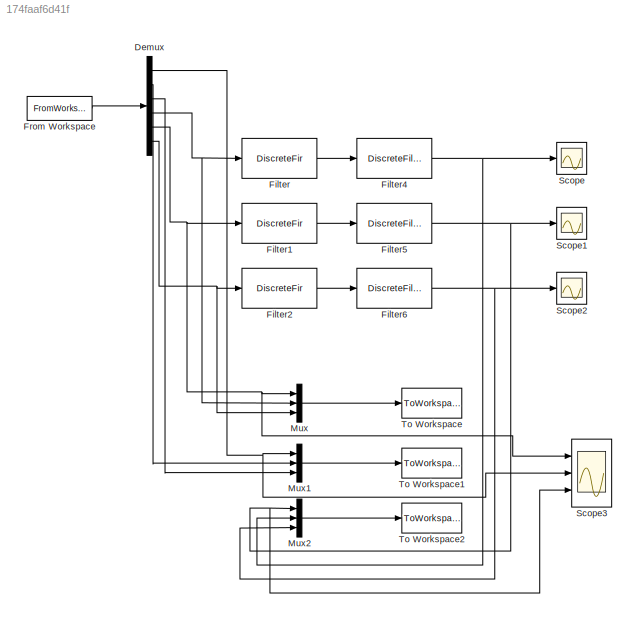
MODEL slx_174faaf6d41f
KIND model
CONFIG AbsTol = auto
CONFIG EnableMultiTasking = off
CONFIG FixedStep = auto
CONFIG MaxStep = auto
CONFIG MinStep = auto
CONFIG RelTol = 1e-3
CONFIG SampleTimeConstraint = Unconstrained
CONFIG Solver = VariableStepAuto
CONFIG SolverName = VariableStepAuto
CONFIG StartTime = 0.0
CONFIG StopTime = 19
BLOCK [Demux] Demux
  DisplayOption = bar
  Outputs = 6
  Ports = [1, 6]
BLOCK [DiscreteFir] Filter
  Coefficients = [6.3171406458817249e-18 0.038757485800321609 0.085067928451757008 0.12917070559097471 0.16083305039150533 0.17234165953088285 0.16083305039150533 0.12917070559097471 0.085067928451757008 0.038757485800321609 6.3171406458817249e-18]  <repeated x3 — deduplicated; at blocks: Filter, Filter1, Filter2>
  InputPortMap = u0
  InputProcessing = Columns as channels (frame based)
  OutputPortMap = o0
  Ports = [1, 1]
  Tag = BlockMethodSubSystem
BLOCK [DiscreteFir] Filter1
  InputPortMap = u0
  InputProcessing = Columns as channels (frame based)
  OutputPortMap = o0
  Ports = [1, 1]
  Tag = BlockMethodSubSystem
BLOCK [DiscreteFir] Filter2
  InputPortMap = u0
  InputProcessing = Columns as channels (frame based)
  OutputPortMap = o0
  Ports = [1, 1]
  Tag = BlockMethodSubSystem
BLOCK [DiscreteFilter] Filter4
  Denominator = [1 -1.8886556848759783 0.99203870125905658]
  InputPortMap = u0
  InputProcessing = Columns as channels (frame based)
  Numerator = [0.99601935062952829 -1.8886556848759783 0.99601935062952829]
  Ports = [1, 1]
  Tag = BlockMethodSubSystem
  a0EqualsOne = on
BLOCK [DiscreteFilter] Filter5
  Denominator = [1 -1.8886556848759783 0.99203870125905658]
  InputPortMap = u0
  InputProcessing = Columns as channels (frame based)
  Numerator = [0.99601935062952829 -1.8886556848759783 0.99601935062952829]
  Ports = [1, 1]
  Tag = BlockMethodSubSystem
  a0EqualsOne = on
BLOCK [DiscreteFilter] Filter6
  Denominator = [1 -1.8886556848759783 0.99203870125905658]
  InputPortMap = u0
  InputProcessing = Columns as channels (frame based)
  Numerator = [0.99601935062952829 -1.8886556848759783 0.99601935062952829]
  Ports = [1, 1]
  Tag = BlockMethodSubSystem
  a0EqualsOne = on
BLOCK [FromWorkspace] From Workspace
  OutputAfterFinalValue = Setting to zero
  SampleTime = 0.001
  VariableName = gimbaldata4
  ZeroCross = on
BLOCK [Mux] Mux
  DisplayOption = bar
  Inputs = 3
  Ports = [3, 1]
BLOCK [Mux] Mux1
  DisplayOption = bar
  Inputs = 3
  Ports = [3, 1]
BLOCK [Mux] Mux2
  DisplayOption = bar
  Inputs = 3
  Ports = [3, 1]
BLOCK [Scope] Scope
  NumInputPorts = 1
  Ports = [1]
  ScopeSpecificationString = Simulink.scopes.TimeScopeBlockCfg('CurrentConfiguration', extmgr.ConfigurationSet(extmgr.Configuration('Core','General UI',true),extmgr.Configuration('Core','Source UI',true),extmgr.Configuration('Sources','WiredSimulink',true),extmgr.Configuration('Visuals','Time Domain',true,'SerializedDisplays',{struct('MinYLimReal','-1054.17358','MaxYLimReal','666.1462','YLabelReal','','MinYLimMag','  0.00000'...<+1374ch>
BLOCK [Scope] Scope1
  NumInputPorts = 1
  Ports = [1]
  ScopeSpecificationString = Simulink.scopes.TimeScopeBlockCfg('CurrentConfiguration', extmgr.ConfigurationSet(extmgr.Configuration('Core','General UI',true),extmgr.Configuration('Core','Source UI',true),extmgr.Configuration('Sources','WiredSimulink',true,'DataLoggingVariableName','ScopeData1'),extmgr.Configuration('Visuals','Time Domain',true,'SerializedDisplays',{struct('MinYLimReal','-876.33503','MaxYLimReal','845.84313','...<+1409ch>
BLOCK [Scope] Scope2
  NumInputPorts = 1
  Ports = [1]
  ScopeSpecificationString = Simulink.scopes.TimeScopeBlockCfg('CurrentConfiguration', extmgr.ConfigurationSet(extmgr.Configuration('Core','General UI',true),extmgr.Configuration('Core','Source UI',true),extmgr.Configuration('Sources','WiredSimulink',true,'DataLoggingVariableName','ScopeData2'),extmgr.Configuration('Visuals','Time Domain',true,'SerializedDisplays',{struct('MinYLimReal','-399.26979','MaxYLimReal','419.12659','...<+1409ch>
BLOCK [Scope] Scope3
  NumInputPorts = 3
  Ports = [3]
  ScopeSpecificationString = Simulink.scopes.TimeScopeBlockCfg('CurrentConfiguration', extmgr.ConfigurationSet(extmgr.Configuration('Core','General UI',true),extmgr.Configuration('Core','Source UI',true),extmgr.Configuration('Sources','WiredSimulink',true,'DataLoggingVariableName','ScopeData3'),extmgr.Configuration('Visuals','Time Domain',true,'SerializedDisplays',{struct('MinYLimReal','-556.68144','MaxYLimReal','212.50128','...<+1446ch>
BLOCK [ToWorkspace] To Workspace
  FixptAsFi = on
  MaxDataPoints = inf
  Ports = [1]
  SampleTime = -1
  Save2DSignal = 3-D array (concatenate along third dimension)
  VariableName = simout_g
BLOCK [ToWorkspace] To Workspace1
  FixptAsFi = on
  MaxDataPoints = inf
  Ports = [1]
  SampleTime = -1
  Save2DSignal = 3-D array (concatenate along third dimension)
  VariableName = simout_gf
BLOCK [ToWorkspace] To Workspace2
  FixptAsFi = on
  MaxDataPoints = inf
  Ports = [1]
  SampleTime = -1
  Save2DSignal = 3-D array (concatenate along third dimension)
  VariableName = simout_gfir
NET Demux:1 -> Mux1:1, Scope3:2
LINE Demux:2 -> Mux1:2
LINE Demux:3 -> Mux1:3
NET Demux:4 -> Filter:1, Mux:2
NET Demux:5 -> Filter1:1, Mux:1, Scope3:1
NET Demux:6 -> Filter2:1, Mux:3
LINE Filter1:1 -> Filter5:1
LINE Filter2:1 -> Filter6:1
NET Filter4:1 -> Mux2:2, Scope:1
NET Filter5:1 -> Mux2:1, Scope1:1, Scope3:3
NET Filter6:1 -> Mux2:3, Scope2:1
LINE Filter:1 -> Filter4:1
LINE From Workspace:1 -> Demux:1
LINE Mux1:1 -> To Workspace1:1
LINE Mux2:1 -> To Workspace2:1
LINE Mux:1 -> To Workspace:1
note: NET lines group one-source signal fan-out (src -> all destinations, sorted); 1:1 wires keep LINE
